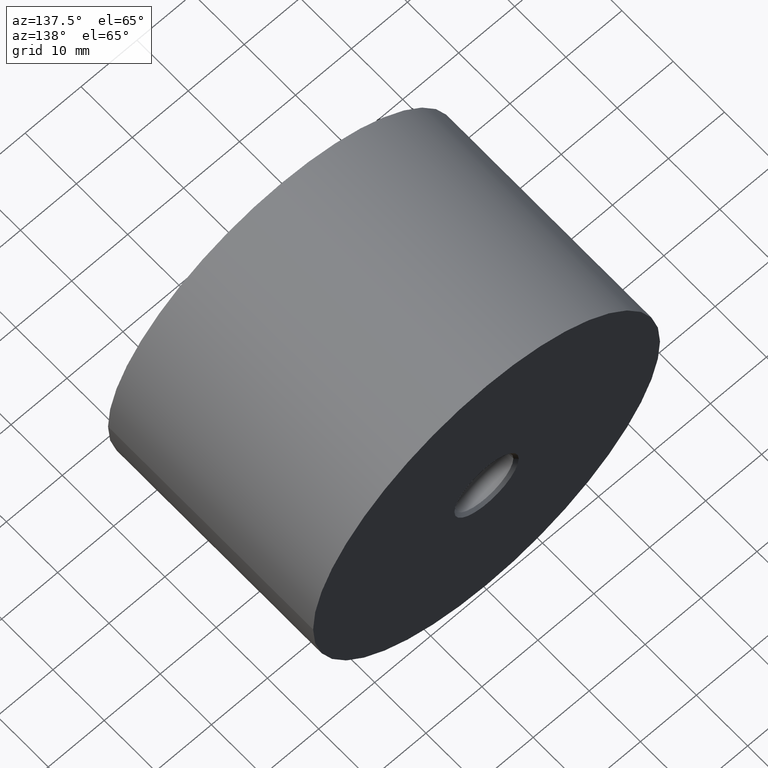
[diagram: clean part render]
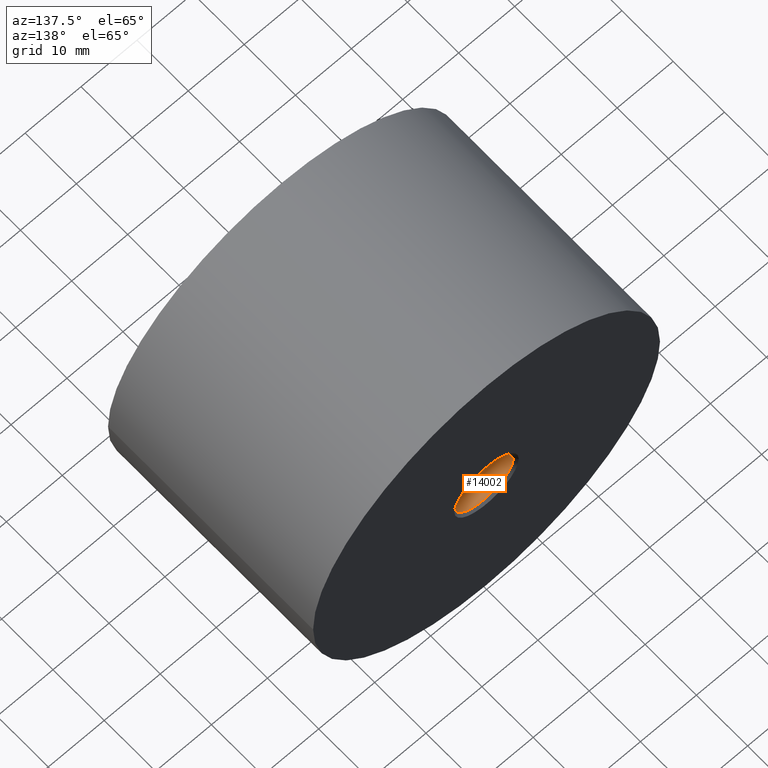
[diagram: same view with one face highlighted and labeled with its STEP entity id]
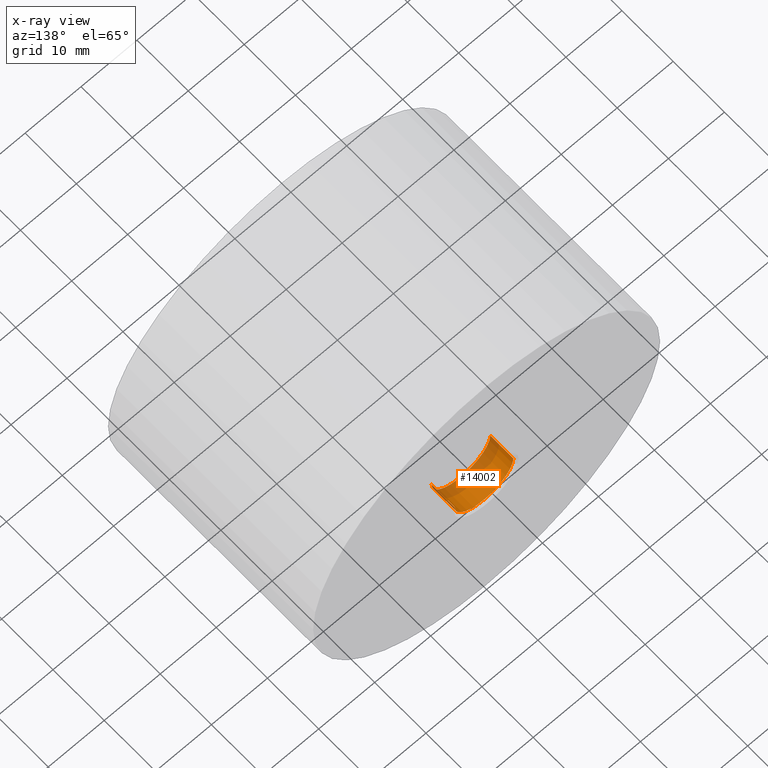
[diagram: x-ray of the same camera — body ghosted, the highlighted face saturated]
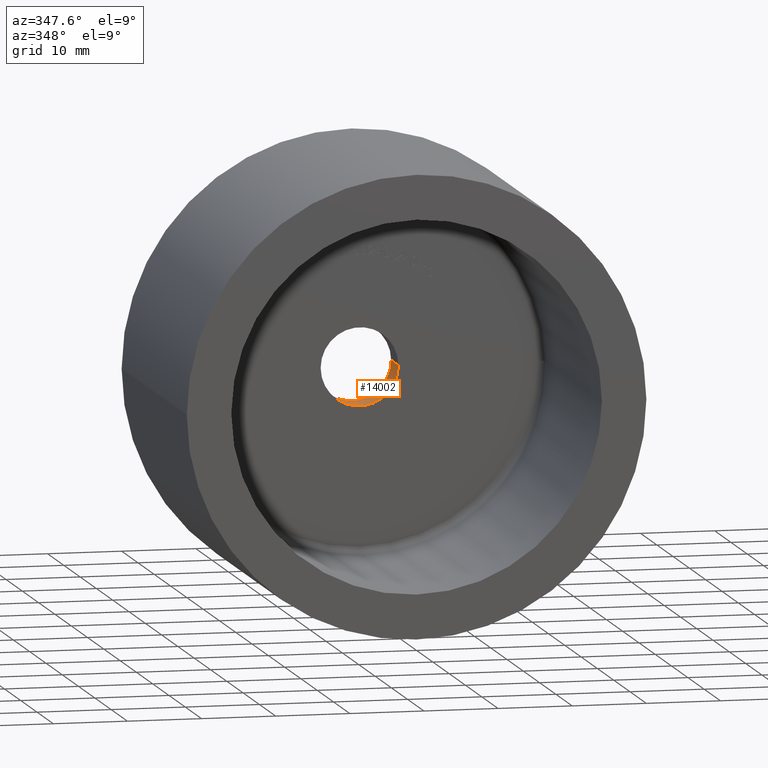
[diagram: same view with one face highlighted and labeled with its STEP entity id]
A machine part, auxiliary view. The second image highlights one B-rep face of the part: STEP entity #14002.
The next image is the same camera in x-ray: the body ghosted, the highlighted face saturated — about 36% of this face is hidden behind the body in this view.
A second angle (auxiliary view) of the same face is appended — the face is thin or edge-on in the first view.
In plain terms, the highlighted cylindrical surface (partial cylindrical patch) has radius 5.25 mm, axis along (-0, 1, -0).
Its self-contained STEP definition (entity closure, byte-faithful):
#460 = CARTESIAN_POINT ( 'NONE',  ( 5.249999999999998224, 39.50000000000000000, 6.735557395310443995E-16 ) ) ;
#1091 = AXIS2_PLACEMENT_3D ( 'NONE', #9216, #13784, #8175 ) ;
#2100 = VECTOR ( 'NONE', #8190, 1000.000000000000000 ) ;
#2378 = ORIENTED_EDGE ( 'NONE', *, *, #9724, .T. ) ;
#2524 = AXIS2_PLACEMENT_3D ( 'NONE', #3412, #11270, #7721 ) ;
#3412 = CARTESIAN_POINT ( 'NONE',  ( -3.426078865054194011E-15, 39.50000000000000000, 0.000000000000000000 ) ) ;
#3625 = CYLINDRICAL_SURFACE ( 'NONE', #8773, 5.250000000000004441 ) ;
#3699 = DIRECTION ( 'NONE',  ( -8.673617379884035472E-17, 1.000000000000000000, -0.000000000000000000 ) ) ;
#3922 = CIRCLE ( 'NONE', #1091, 5.250000000000004441 ) ;
#4054 = CIRCLE ( 'NONE', #2524, 5.250000000000001776 ) ;
#4069 = CARTESIAN_POINT ( 'NONE',  ( -5.250000000000005329, 39.50000000000000000, 0.000000000000000000 ) ) ;
#4867 = ORIENTED_EDGE ( 'NONE', *, *, #8237, .T. ) ;
#4944 = CARTESIAN_POINT ( 'NONE',  ( -5.250000000000007994, 40.00000000000000000, 0.000000000000000000 ) ) ;
#5518 = EDGE_CURVE ( 'NONE', #11627, #11397, #3922, .T. ) ;
#5782 = VECTOR ( 'NONE', #13106, 1000.000000000000000 ) ;
#6973 = DIRECTION ( 'NONE',  ( -1.000000000000000000, 0.000000000000000000, 0.000000000000000000 ) ) ;
#7516 = EDGE_LOOP ( 'NONE', ( #11577, #2378, #4867, #9426 ) ) ;
#7721 = DIRECTION ( 'NONE',  ( -1.000000000000000000, 0.000000000000000000, 0.000000000000000000 ) ) ;
#8033 = CARTESIAN_POINT ( 'NONE',  ( -5.250000000000007994, 35.00000000000000000, 0.000000000000000000 ) ) ;
#8175 = DIRECTION ( 'NONE',  ( -1.000000000000000000, 0.000000000000000000, 0.000000000000000000 ) ) ;
#8190 = DIRECTION ( 'NONE',  ( -8.673617379884035472E-17, 1.000000000000000000, -0.000000000000000000 ) ) ;
#8237 = EDGE_CURVE ( 'NONE', #9678, #9488, #4054, .T. ) ;
#8631 = LINE ( 'NONE', #4944, #2100 ) ;
#8643 = CARTESIAN_POINT ( 'NONE',  ( 5.250000000000000888, 40.00000000000000000, 6.429395695523610069E-16 ) ) ;
#8773 = AXIS2_PLACEMENT_3D ( 'NONE', #12448, #3699, #6973 ) ;
#9216 = CARTESIAN_POINT ( 'NONE',  ( -3.035766082959412810E-15, 35.00000000000000000, 0.000000000000000000 ) ) ;
#9312 = LINE ( 'NONE', #8643, #5782 ) ;
#9426 = ORIENTED_EDGE ( 'NONE', *, *, #9688, .F. ) ;
#9488 = VERTEX_POINT ( 'NONE', #4069 ) ;
#9678 = VERTEX_POINT ( 'NONE', #460 ) ;
#9688 = EDGE_CURVE ( 'NONE', #11397, #9488, #8631, .T. ) ;
#9724 = EDGE_CURVE ( 'NONE', #11627, #9678, #9312, .T. ) ;
#11270 = DIRECTION ( 'NONE',  ( -8.673617379884035472E-17, 1.000000000000000000, -0.000000000000000000 ) ) ;
#11397 = VERTEX_POINT ( 'NONE', #8033 ) ;
#11577 = ORIENTED_EDGE ( 'NONE', *, *, #5518, .F. ) ;
#11627 = VERTEX_POINT ( 'NONE', #14289 ) ;
#12448 = CARTESIAN_POINT ( 'NONE',  ( -3.469446951953614189E-15, 40.00000000000000000, 0.000000000000000000 ) ) ;
#12588 = FACE_OUTER_BOUND ( 'NONE', #7516, .T. ) ;
#13106 = DIRECTION ( 'NONE',  ( -8.673617379884035472E-17, 1.000000000000000000, -0.000000000000000000 ) ) ;
#13784 = DIRECTION ( 'NONE',  ( -8.673617379884035472E-17, 1.000000000000000000, -0.000000000000000000 ) ) ;
#14002 = ADVANCED_FACE ( 'NONE', ( #12588 ), #3625, .F. ) ;
#14289 = CARTESIAN_POINT ( 'NONE',  ( 5.250000000000000888, 35.00000000000000000, 6.429395695523610069E-16 ) ) ;